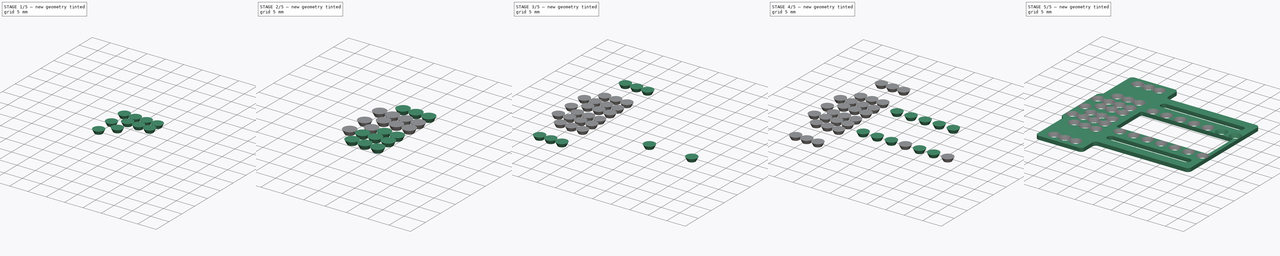
[diagram: build sequence overview — one tinted view per stage of 5, left to right]
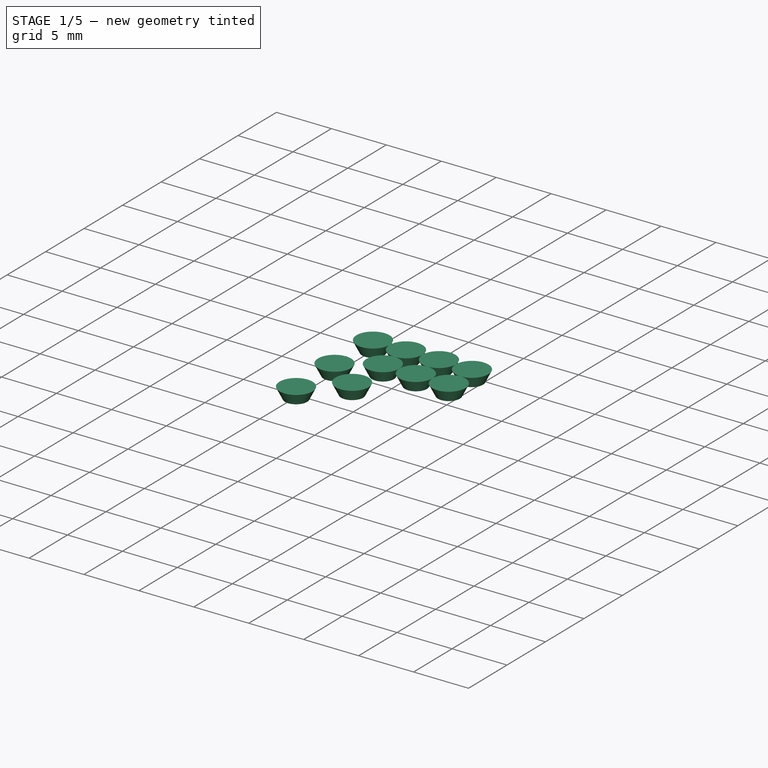
[diagram: stage 1 of 5 — iso view after this stage's code; geometry added in this stage tinted green]
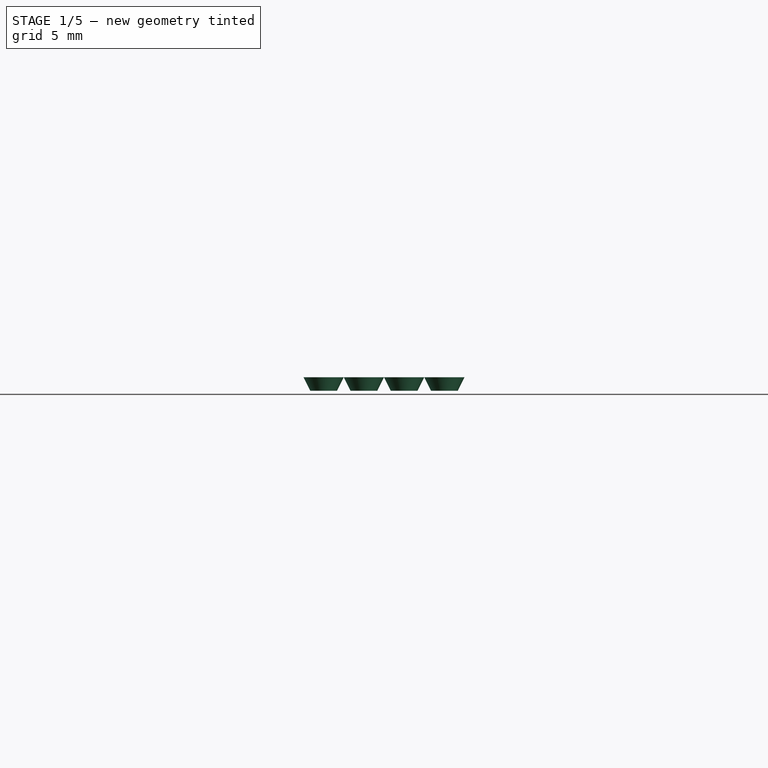
[diagram: stage 1 of 5 — front view after this stage's code; geometry added in this stage tinted green]
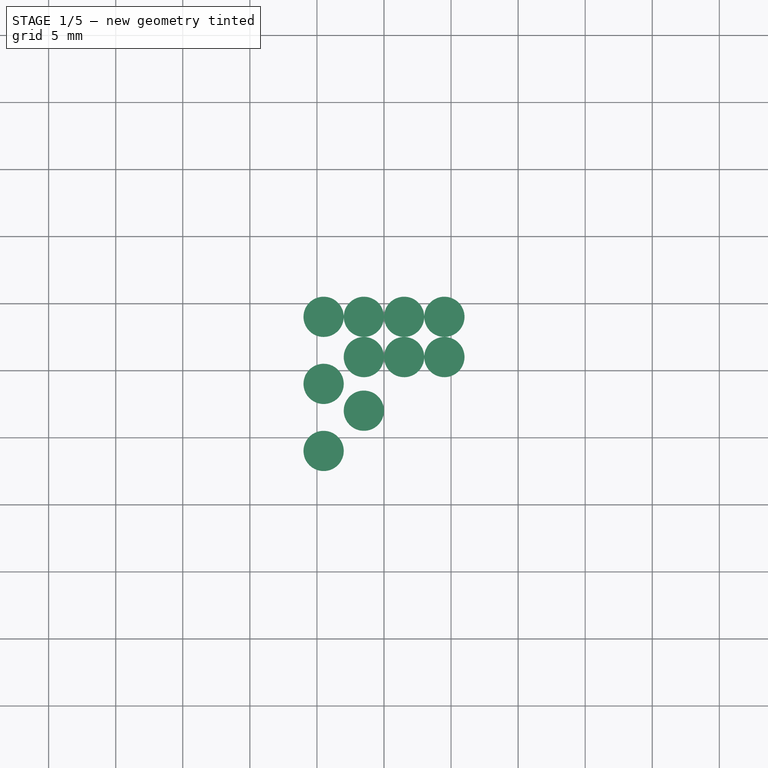
[diagram: stage 1 of 5 — top view after this stage's code; geometry added in this stage tinted green]
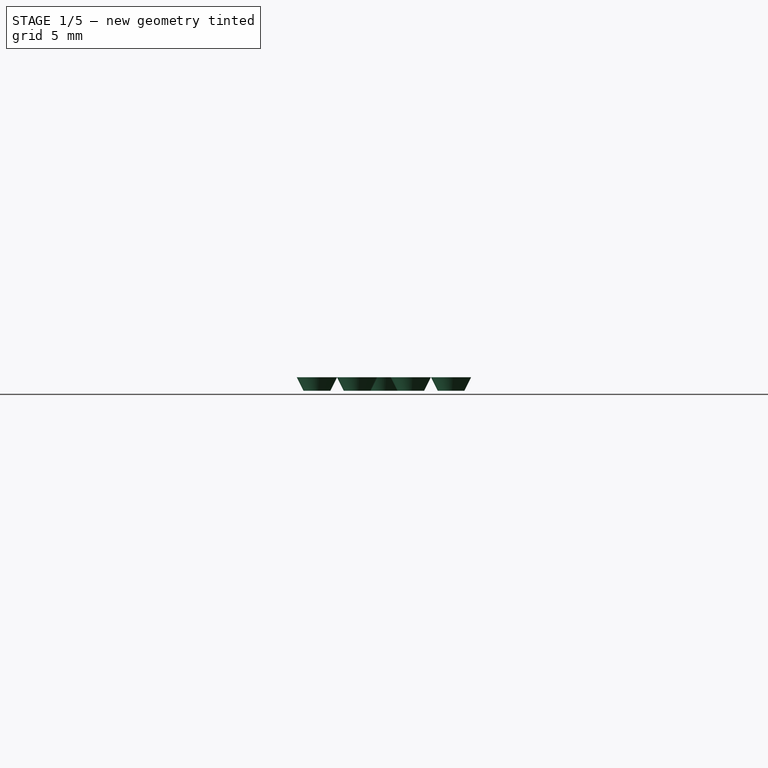
[diagram: stage 1 of 5 — right view after this stage's code; geometry added in this stage tinted green]
FCSTD DOCUMENT  (FreeCAD 0.14R3702 (Git))
Label: scaleauto-b
License: CC-BY 3.0
LicenseURL: http://creativecommons.org/licenses/by/3.0/
objects: Sketcher::SketchObject×86, Part::Loft×41, Part::MultiFuse×7, Part::Extrusion×4, Part::Cut×2
note: 140 computed .brp shape members not serialized (recipe doc carries the construction recipe); baked Part::Feature solids carry a one-line shape summary decoded from their .brp

FEATURE [Sketcher::SketchObject] Sketch034
  sketch-geometry (1):
    g0: Circle CenterX=2 CenterY=2 CenterZ=0 NormalX=0 NormalY=0 NormalZ=1 Radius=1
FEATURE [Sketcher::SketchObject] Sketch035
  Placement = pos=(0,0,1) rot=(0,0,1;0rad)
  sketch-geometry (1):
    g0: Circle CenterX=2 CenterY=2 CenterZ=0 NormalX=0 NormalY=0 NormalZ=1 Radius=1.5
FEATURE [Sketcher::SketchObject] Sketch036
  Placement = pos=(0,0,1) rot=(0,0,1;0rad)
  sketch-geometry (1):
    g0: Circle CenterX=2 CenterY=2 CenterZ=0 NormalX=0 NormalY=0 NormalZ=1 Radius=1.5
FEATURE [Sketcher::SketchObject] Sketch037
  sketch-geometry (1):
    g0: Circle CenterX=2 CenterY=2 CenterZ=0 NormalX=0 NormalY=0 NormalZ=1 Radius=1
FEATURE [Part::Loft] Loft018  label="Loft059"
  Closed = false
  Placement = pos=(4.501,18.999,0) rot=(0,0,1;0rad)
  Ruled = false
  Sections = -> [Sketch037,Sketch036]
  Solid = true
FEATURE [Sketcher::SketchObject] Sketch039
  Placement = pos=(0,0,1) rot=(0,0,1;0rad)
  sketch-geometry (1):
    g0: Circle CenterX=2 CenterY=2 CenterZ=0 NormalX=0 NormalY=0 NormalZ=1 Radius=1.5
FEATURE [Part::Loft] Loft017  label="Loft058"
  Closed = false
  Placement = pos=(1.5,15.001,0) rot=(0,0,1;0rad)
  Ruled = false
  Sections = -> [Sketch034,Sketch039]
  Solid = true
FEATURE [Sketcher::SketchObject] Sketch040
  Placement = pos=(0,0,1) rot=(0,0,1;0rad)
  sketch-geometry (1):
    g0: Circle CenterX=2 CenterY=2 CenterZ=0 NormalX=0 NormalY=0 NormalZ=1 Radius=1.5
FEATURE [Sketcher::SketchObject] Sketch041
  sketch-geometry (1):
    g0: Circle CenterX=2 CenterY=2 CenterZ=0 NormalX=0 NormalY=0 NormalZ=1 Radius=1
FEATURE [Part::Loft] Loft019  label="Loft060"
  Closed = false
  Placement = pos=(1.5,18.999,0) rot=(0,0,1;0rad)
  Ruled = false
  Sections = -> [Sketch041,Sketch040]
  Solid = true
FEATURE [Sketcher::SketchObject] Sketch042
  Placement = pos=(0,0,1) rot=(0,0,1;0rad)
  sketch-geometry (1):
    g0: Circle CenterX=2 CenterY=2 CenterZ=0 NormalX=0 NormalY=0 NormalZ=1 Radius=1.5
FEATURE [Sketcher::SketchObject] Sketch043
  sketch-geometry (1):
    g0: Circle CenterX=2 CenterY=2 CenterZ=0 NormalX=0 NormalY=0 NormalZ=1 Radius=1
FEATURE [Part::Loft] Loft020  label="Loft061"
  Closed = false
  Placement = pos=(11.502,18.999,0) rot=(0,0,1;1.5708rad)
  Ruled = false
  Sections = -> [Sketch043,Sketch042]
  Solid = true
FEATURE [Sketcher::SketchObject] Sketch044
  Placement = pos=(0,0,1) rot=(0,0,1;0rad)
  sketch-geometry (1):
    g0: Circle CenterX=2 CenterY=2 CenterZ=0 NormalX=0 NormalY=0 NormalZ=1 Radius=1.5
FEATURE [Sketcher::SketchObject] Sketch045
  sketch-geometry (1):
    g0: Circle CenterX=2 CenterY=2 CenterZ=0 NormalX=0 NormalY=0 NormalZ=1 Radius=1
FEATURE [Part::Loft] Loft021  label="Loft033"
  Closed = false
  Placement = pos=(11.503,22,0) rot=(0,0,1;1.5708rad)
  Ruled = false
  Sections = -> [Sketch045,Sketch044]
  Solid = true
FEATURE [Sketcher::SketchObject] Sketch046
  sketch-geometry (1):
    g0: Circle CenterX=2 CenterY=2 CenterZ=0 NormalX=0 NormalY=0 NormalZ=1 Radius=1
FEATURE [Sketcher::SketchObject] Sketch047
  Placement = pos=(0,0,1) rot=(0,0,1;0rad)
  sketch-geometry (1):
    g0: Circle CenterX=2 CenterY=2 CenterZ=0 NormalX=0 NormalY=0 NormalZ=1 Radius=1.5
FEATURE [Sketcher::SketchObject] Sketch050
  sketch-geometry (1):
    g0: Circle CenterX=2 CenterY=2 CenterZ=0 NormalX=0 NormalY=0 NormalZ=1 Radius=1
FEATURE [Part::Loft] Loft022  label="Loft062"
  Closed = false
  Placement = pos=(4.501,22,0) rot=(0,0,1;0rad)
  Ruled = false
  Sections = -> [Sketch050,Sketch047]
  Solid = true
FEATURE [Sketcher::SketchObject] Sketch051
  Placement = pos=(0,0,1) rot=(0,0,1;0rad)
  sketch-geometry (1):
    g0: Circle CenterX=2 CenterY=2 CenterZ=0 NormalX=0 NormalY=0 NormalZ=1 Radius=1.5
FEATURE [Part::Loft] Loft023  label="Loft063"
  Closed = false
  Placement = pos=(1.5,22,0) rot=(0,0,1;0rad)
  Ruled = false
  Sections = -> [Sketch046,Sketch051]
  Solid = true
FEATURE [Sketcher::SketchObject] Sketch052
  Placement = pos=(0,0,1) rot=(0,0,1;0rad)
  sketch-geometry (1):
    g0: Circle CenterX=2 CenterY=2 CenterZ=0 NormalX=0 NormalY=0 NormalZ=1 Radius=1.5
FEATURE [Sketcher::SketchObject] Sketch053
  sketch-geometry (1):
    g0: Circle CenterX=2 CenterY=2 CenterZ=0 NormalX=0 NormalY=0 NormalZ=1 Radius=1
FEATURE [Part::Loft] Loft024  label="Loft064"
  Closed = false
  Placement = pos=(-1.5,12,0) rot=(0,0,1;0rad)
  Ruled = false
  Sections = -> [Sketch053,Sketch052]
  Solid = true
FEATURE [Sketcher::SketchObject] Sketch054
  Placement = pos=(0,0,1) rot=(0,0,1;0rad)
  sketch-geometry (1):
    g0: Circle CenterX=2 CenterY=2 CenterZ=0 NormalX=0 NormalY=0 NormalZ=1 Radius=1.5
FEATURE [Sketcher::SketchObject] Sketch055
  sketch-geometry (1):
    g0: Circle CenterX=2 CenterY=2 CenterZ=0 NormalX=0 NormalY=0 NormalZ=1 Radius=1
FEATURE [Part::Loft] Loft025  label="Loft065"
  Closed = false
  Placement = pos=(-1.5,22,0) rot=(0,0,1;0rad)
  Ruled = false
  Sections = -> [Sketch055,Sketch054]
  Solid = true
FEATURE [Sketcher::SketchObject] Sketch056
  Placement = pos=(0,0,1) rot=(0,0,1;0rad)
  sketch-geometry (1):
    g0: Circle CenterX=2 CenterY=2 CenterZ=0 NormalX=0 NormalY=0 NormalZ=1 Radius=1.5
FEATURE [Sketcher::SketchObject] Sketch057
  sketch-geometry (1):
    g0: Circle CenterX=2 CenterY=2 CenterZ=0 NormalX=0 NormalY=0 NormalZ=1 Radius=1
FEATURE [Part::Loft] Loft026  label="Loft066"
  Closed = false
  Placement = pos=(-1.5,17,0) rot=(0,0,1;0rad)
  Ruled = false
  Sections = -> [Sketch057,Sketch056]
  Solid = true
FEATURE [Part::MultiFuse] Fusion004
  Shapes = -> [Loft026,Loft025,Loft024]
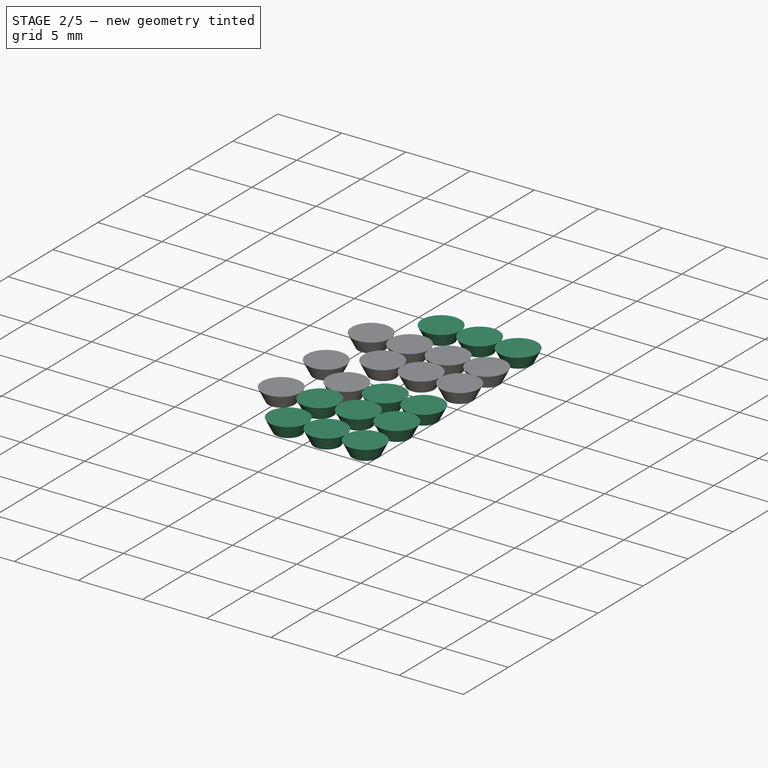
[diagram: stage 2 of 5 — iso view after this stage's code; geometry added in this stage tinted green]
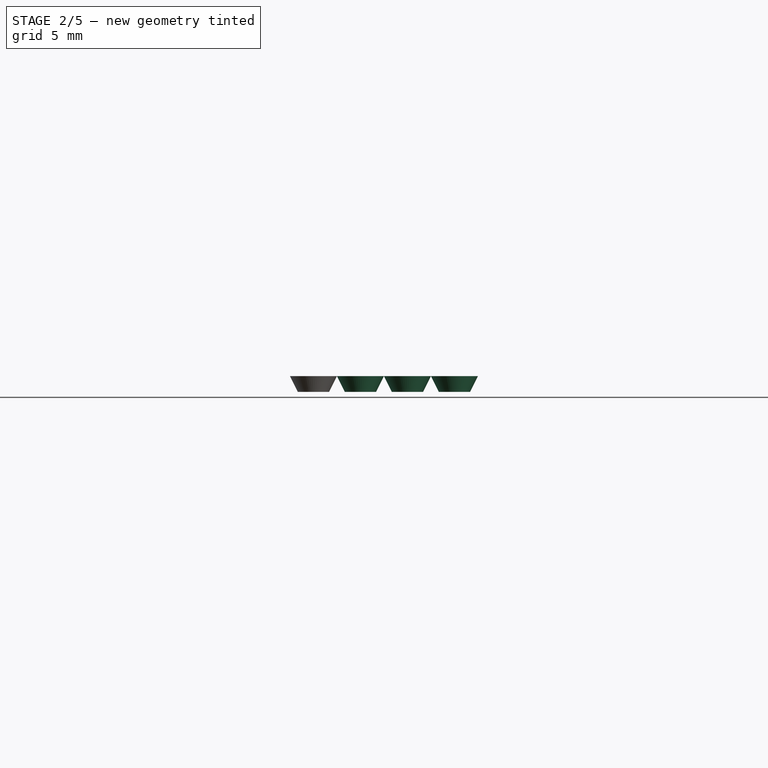
[diagram: stage 2 of 5 — front view after this stage's code; geometry added in this stage tinted green]
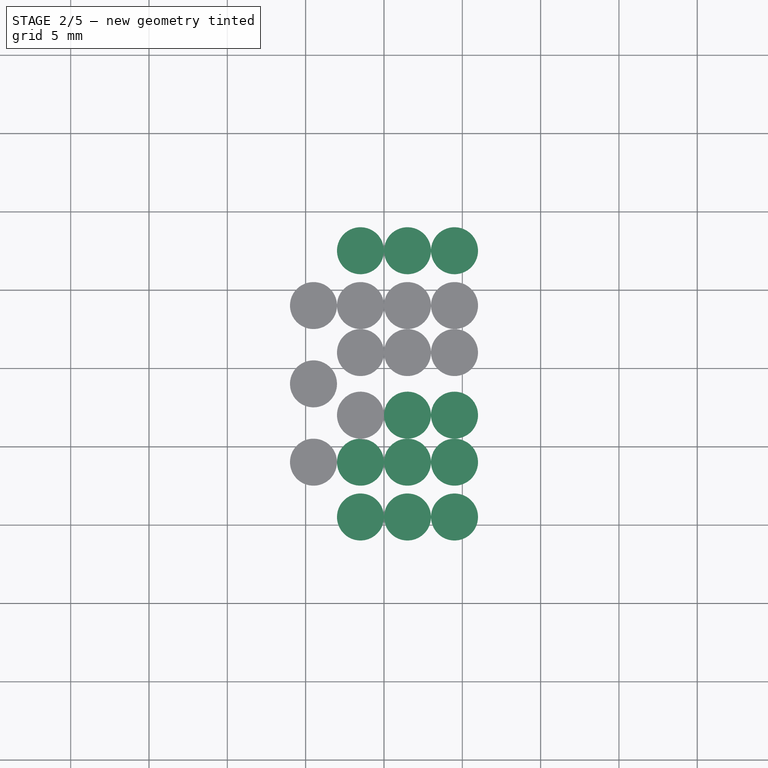
[diagram: stage 2 of 5 — top view after this stage's code; geometry added in this stage tinted green]
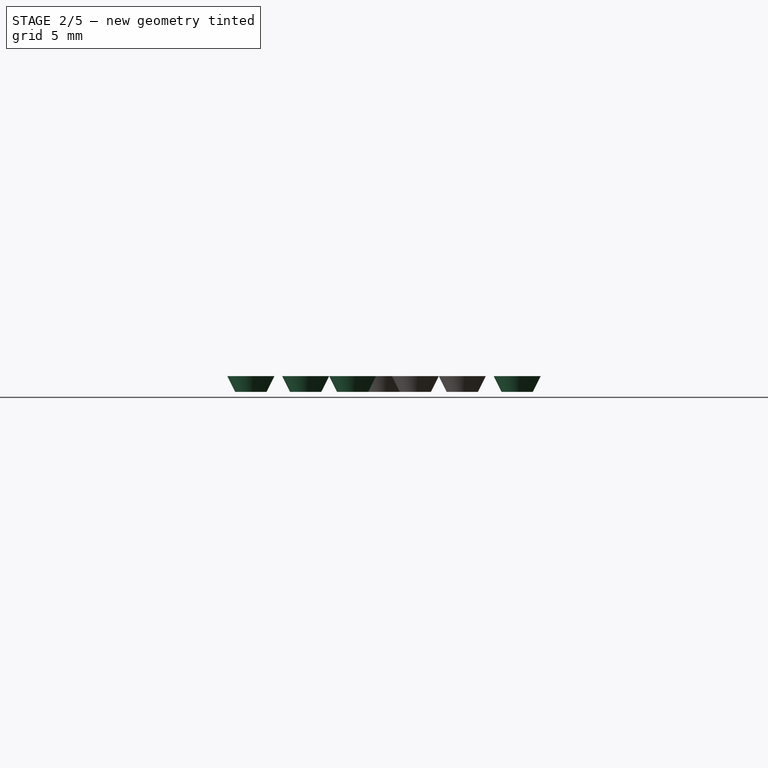
[diagram: stage 2 of 5 — right view after this stage's code; geometry added in this stage tinted green]
FEATURE [Sketcher::SketchObject] Sketch014
  sketch-geometry (1):
    g0: Circle CenterX=2 CenterY=2 CenterZ=0 NormalX=0 NormalY=0 NormalZ=1 Radius=1
FEATURE [Sketcher::SketchObject] Sketch015
  Placement = pos=(0,0,1) rot=(0,0,1;0rad)
  sketch-geometry (1):
    g0: Circle CenterX=2 CenterY=2 CenterZ=0 NormalX=0 NormalY=0 NormalZ=1 Radius=1.5
FEATURE [Sketcher::SketchObject] Sketch016
  sketch-geometry (1):
    g0: Circle CenterX=2 CenterY=2 CenterZ=0 NormalX=0 NormalY=0 NormalZ=1 Radius=1
FEATURE [Part::Loft] Loft006  label="Loft047"
  Closed = false
  Placement = pos=(11.502,25.5,0) rot=(0,0,1;1.5708rad)
  Ruled = false
  Sections = -> [Sketch016,Sketch015]
  Solid = true
FEATURE [Sketcher::SketchObject] Sketch017
  Placement = pos=(0,0,1) rot=(0,0,1;0rad)
  sketch-geometry (1):
    g0: Circle CenterX=2 CenterY=2 CenterZ=0 NormalX=0 NormalY=0 NormalZ=1 Radius=1.5
FEATURE [Part::Loft] Loft007  label="Loft048"
  Closed = false
  Placement = pos=(1.5,25.5,0) rot=(0,0,1;0rad)
  Ruled = false
  Sections = -> [Sketch014,Sketch017]
  Solid = true
FEATURE [Sketcher::SketchObject] Sketch018
  Placement = pos=(0,0,1) rot=(0,0,1;0rad)
  sketch-geometry (1):
    g0: Circle CenterX=2 CenterY=2 CenterZ=0 NormalX=0 NormalY=0 NormalZ=1 Radius=1.5
FEATURE [Sketcher::SketchObject] Sketch019
  sketch-geometry (1):
    g0: Circle CenterX=2 CenterY=2 CenterZ=0 NormalX=0 NormalY=0 NormalZ=1 Radius=1
FEATURE [Part::Loft] Loft008  label="Loft049"
  Closed = false
  Placement = pos=(4.501,25.5,0) rot=(0,0,1;0rad)
  Ruled = false
  Sections = -> [Sketch019,Sketch018]
  Solid = true
FEATURE [Sketcher::SketchObject] Sketch020
  Placement = pos=(0,0,1) rot=(0,0,1;0rad)
  sketch-geometry (1):
    g0: Circle CenterX=2 CenterY=2 CenterZ=0 NormalX=0 NormalY=0 NormalZ=1 Radius=1.5
FEATURE [Sketcher::SketchObject] Sketch021
  sketch-geometry (1):
    g0: Circle CenterX=2 CenterY=2 CenterZ=0 NormalX=0 NormalY=0 NormalZ=1 Radius=1
FEATURE [Part::Loft] Loft009  label="Loft050"
  Closed = false
  Placement = pos=(11.502,8.5,0) rot=(0,0,1;1.5708rad)
  Ruled = false
  Sections = -> [Sketch021,Sketch020]
  Solid = true
FEATURE [Sketcher::SketchObject] Sketch022
  Placement = pos=(0,0,1) rot=(0,0,1;0rad)
  sketch-geometry (1):
    g0: Circle CenterX=2 CenterY=2 CenterZ=0 NormalX=0 NormalY=0 NormalZ=1 Radius=1.5
FEATURE [Sketcher::SketchObject] Sketch023
  sketch-geometry (1):
    g0: Circle CenterX=2 CenterY=2 CenterZ=0 NormalX=0 NormalY=0 NormalZ=1 Radius=1
FEATURE [Part::Loft] Loft010  label="Loft051"
  Closed = false
  Placement = pos=(1.5,8.5,0) rot=(0,0,1;0rad)
  Ruled = false
  Sections = -> [Sketch023,Sketch022]
  Solid = true
FEATURE [Sketcher::SketchObject] Sketch024
  Placement = pos=(0,0,1) rot=(0,0,1;0rad)
  sketch-geometry (1):
    g0: Circle CenterX=2 CenterY=2 CenterZ=0 NormalX=0 NormalY=0 NormalZ=1 Radius=1.5
FEATURE [Sketcher::SketchObject] Sketch025
  sketch-geometry (1):
    g0: Circle CenterX=2 CenterY=2 CenterZ=0 NormalX=0 NormalY=0 NormalZ=1 Radius=1
FEATURE [Part::Loft] Loft011  label="Loft052"
  Closed = false
  Placement = pos=(4.501,8.5,0) rot=(0,0,1;0rad)
  Ruled = false
  Sections = -> [Sketch025,Sketch024]
  Solid = true
FEATURE [Sketcher::SketchObject] Sketch026
  Placement = pos=(0,0,1) rot=(0,0,1;0rad)
  sketch-geometry (1):
    g0: Circle CenterX=2 CenterY=2 CenterZ=0 NormalX=0 NormalY=0 NormalZ=1 Radius=1.5
FEATURE [Sketcher::SketchObject] Sketch027
  sketch-geometry (1):
    g0: Circle CenterX=2 CenterY=2 CenterZ=0 NormalX=0 NormalY=0 NormalZ=1 Radius=1
FEATURE [Part::Loft] Loft012  label="Loft053"
  Closed = false
  Placement = pos=(4.501,12,0) rot=(0,0,1;0rad)
  Ruled = false
  Sections = -> [Sketch027,Sketch026]
  Solid = true
FEATURE [Sketcher::SketchObject] Sketch028
  Placement = pos=(0,0,1) rot=(0,0,1;0rad)
  sketch-geometry (1):
    g0: Circle CenterX=2 CenterY=2 CenterZ=0 NormalX=0 NormalY=0 NormalZ=1 Radius=1.5
FEATURE [Sketcher::SketchObject] Sketch029
  sketch-geometry (1):
    g0: Circle CenterX=2 CenterY=2 CenterZ=0 NormalX=0 NormalY=0 NormalZ=1 Radius=1
FEATURE [Part::Loft] Loft013  label="Loft054"
  Closed = false
  Placement = pos=(1.5,12,0) rot=(0,0,1;0rad)
  Ruled = false
  Sections = -> [Sketch029,Sketch028]
  Solid = true
FEATURE [Sketcher::SketchObject] Sketch030
  Placement = pos=(0,0,1) rot=(0,0,1;0rad)
  sketch-geometry (1):
    g0: Circle CenterX=2 CenterY=2 CenterZ=0 NormalX=0 NormalY=0 NormalZ=1 Radius=1.5
FEATURE [Sketcher::SketchObject] Sketch031
  sketch-geometry (1):
    g0: Circle CenterX=2 CenterY=2 CenterZ=0 NormalX=0 NormalY=0 NormalZ=1 Radius=1
FEATURE [Part::Loft] Loft014  label="Loft055"
  Closed = false
  Placement = pos=(11.502,12,0) rot=(0,0,1;1.5708rad)
  Ruled = false
  Sections = -> [Sketch031,Sketch030]
  Solid = true
FEATURE [Sketcher::SketchObject] Sketch032
  Placement = pos=(0,0,1) rot=(0,0,1;0rad)
  sketch-geometry (1):
    g0: Circle CenterX=2 CenterY=2 CenterZ=0 NormalX=0 NormalY=0 NormalZ=1 Radius=1.5
FEATURE [Sketcher::SketchObject] Sketch033
  sketch-geometry (1):
    g0: Circle CenterX=2 CenterY=2 CenterZ=0 NormalX=0 NormalY=0 NormalZ=1 Radius=1
FEATURE [Part::Loft] Loft015  label="Loft056"
  Closed = false
  Placement = pos=(11.502,15.001,0) rot=(0,0,1;1.5708rad)
  Ruled = false
  Sections = -> [Sketch033,Sketch032]
  Solid = true
FEATURE [Sketcher::SketchObject] Sketch038
  sketch-geometry (1):
    g0: Circle CenterX=2 CenterY=2 CenterZ=0 NormalX=0 NormalY=0 NormalZ=1 Radius=1
FEATURE [Part::Loft] Loft016  label="Loft057"
  Closed = false
  Placement = pos=(4.501,15.001,0) rot=(0,0,1;0rad)
  Ruled = false
  Sections = -> [Sketch038,Sketch035]
  Solid = true
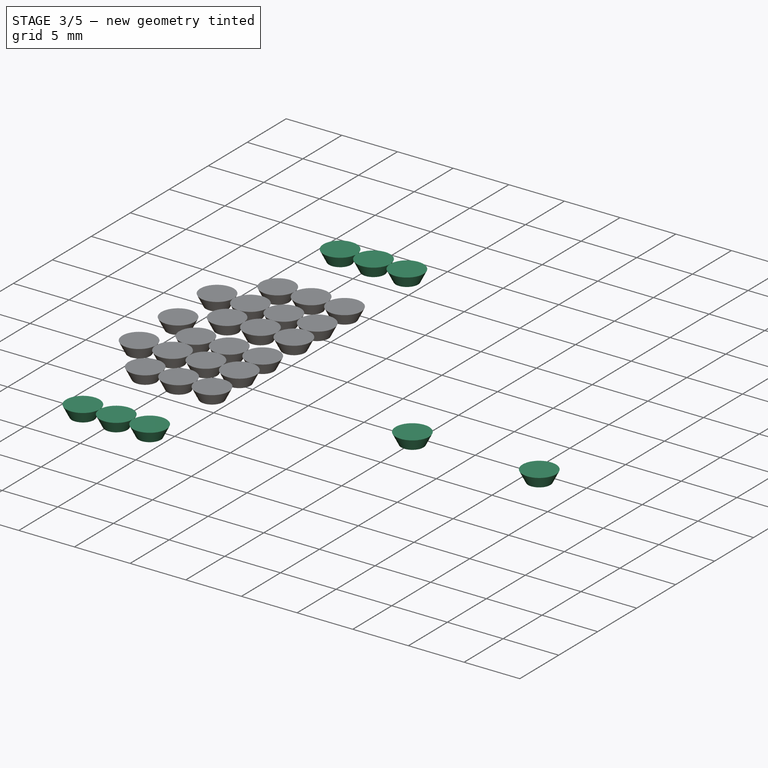
[diagram: stage 3 of 5 — iso view after this stage's code; geometry added in this stage tinted green]
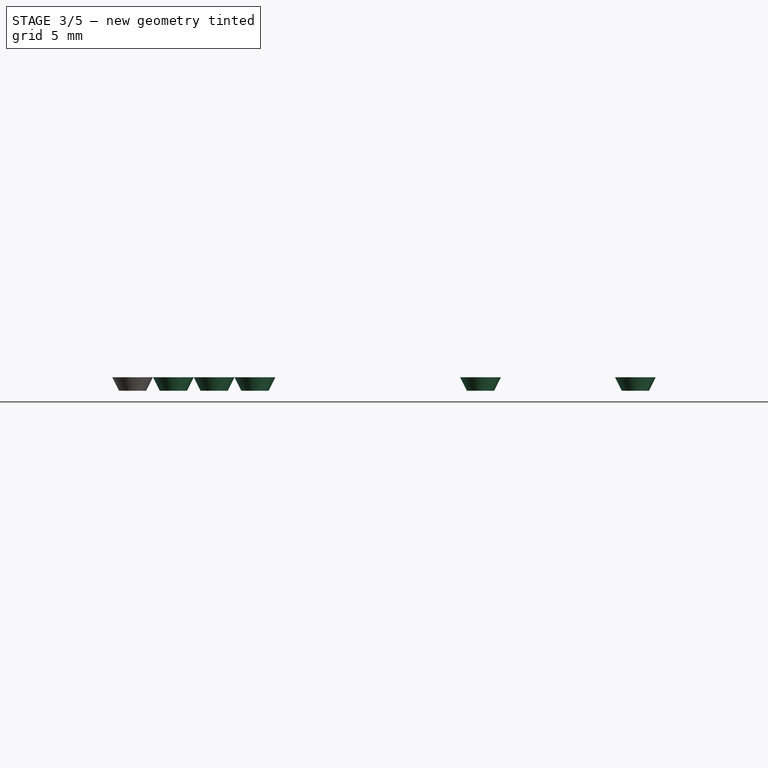
[diagram: stage 3 of 5 — front view after this stage's code; geometry added in this stage tinted green]
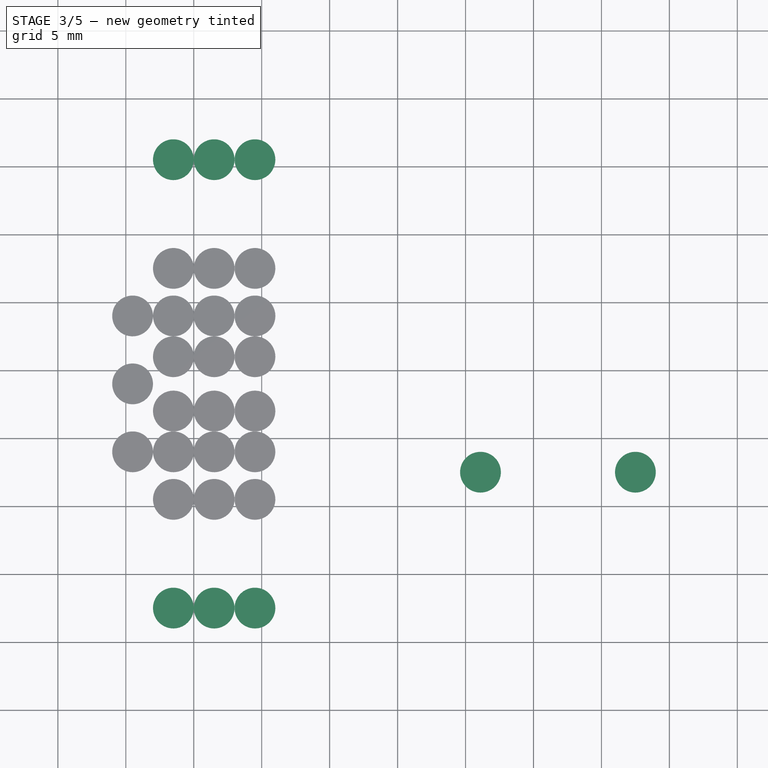
[diagram: stage 3 of 5 — top view after this stage's code; geometry added in this stage tinted green]
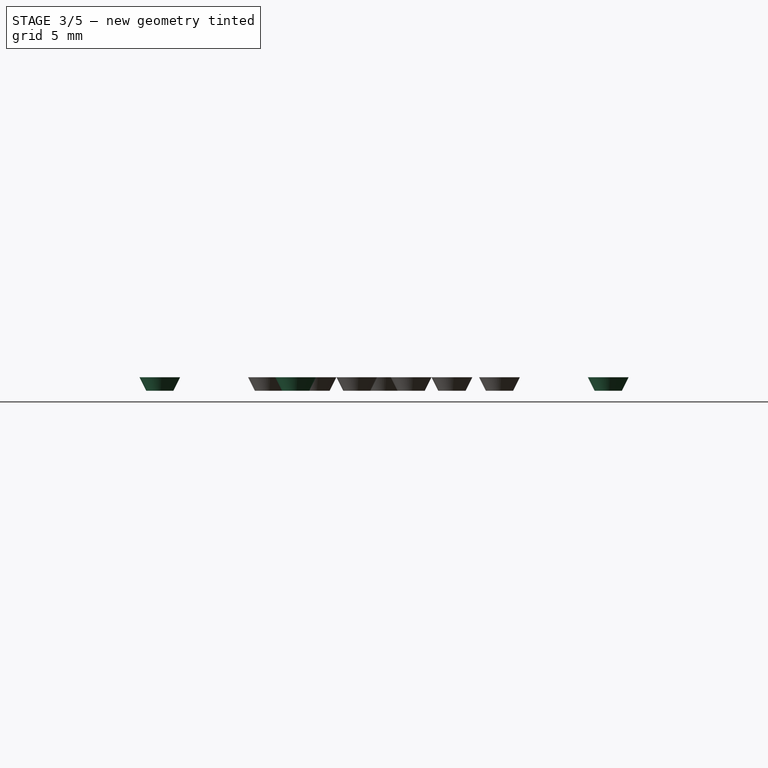
[diagram: stage 3 of 5 — right view after this stage's code; geometry added in this stage tinted green]
FEATURE [Sketcher::SketchObject] Sketch004
  Placement = pos=(0,0,1) rot=(0,0,1;0rad)
  sketch-geometry (1):
    g0: Circle CenterX=2 CenterY=2 CenterZ=0 NormalX=0 NormalY=0 NormalZ=1 Radius=1.5
FEATURE [Sketcher::SketchObject] Sketch005
  sketch-geometry (1):
    g0: Circle CenterX=2 CenterY=2 CenterZ=0 NormalX=0 NormalY=0 NormalZ=1 Radius=1
FEATURE [Part::Loft] Loft001  label="Loft042"
  Closed = false
  Placement = pos=(4.501,0.5,0) rot=(0,0,1;0rad)
  Ruled = false
  Sections = -> [Sketch005,Sketch004]
  Solid = true
FEATURE [Sketcher::SketchObject] Sketch006
  Placement = pos=(0,0,1) rot=(0,0,1;0rad)
  sketch-geometry (1):
    g0: Circle CenterX=2 CenterY=2 CenterZ=0 NormalX=0 NormalY=0 NormalZ=1 Radius=1.5
FEATURE [Sketcher::SketchObject] Sketch007
  sketch-geometry (1):
    g0: Circle CenterX=2 CenterY=2 CenterZ=0 NormalX=0 NormalY=0 NormalZ=1 Radius=1
FEATURE [Part::Loft] Loft002  label="Loft043"
  Closed = false
  Placement = pos=(11.502,0.5,0) rot=(0,0,1;1.5708rad)
  Ruled = false
  Sections = -> [Sketch007,Sketch006]
  Solid = true
FEATURE [Sketcher::SketchObject] Sketch008
  Placement = pos=(0,0,1) rot=(0,0,1;0rad)
  sketch-geometry (1):
    g0: Circle CenterX=2 CenterY=2 CenterZ=0 NormalX=0 NormalY=0 NormalZ=1 Radius=1.5
FEATURE [Sketcher::SketchObject] Sketch009
  Placement = pos=(0,0,1) rot=(0,0,1;0rad)
  sketch-geometry (1):
    g0: Circle CenterX=2 CenterY=2 CenterZ=0 NormalX=0 NormalY=0 NormalZ=1 Radius=1.5
FEATURE [Sketcher::SketchObject] Sketch010
  sketch-geometry (1):
    g0: Circle CenterX=2 CenterY=2 CenterZ=0 NormalX=0 NormalY=0 NormalZ=1 Radius=1
FEATURE [Part::Loft] Loft004  label="Loft045"
  Closed = false
  Placement = pos=(4.501,33.5,0) rot=(0,0,1;0rad)
  Ruled = false
  Sections = -> [Sketch010,Sketch009]
  Solid = true
FEATURE [Sketcher::SketchObject] Sketch011
  sketch-geometry (1):
    g0: Circle CenterX=2 CenterY=2 CenterZ=0 NormalX=0 NormalY=0 NormalZ=1 Radius=1
FEATURE [Part::Loft] Loft003  label="Loft044"
  Closed = false
  Placement = pos=(1.5,0.5,0) rot=(0,0,1;0rad)
  Ruled = false
  Sections = -> [Sketch011,Sketch008]
  Solid = true
FEATURE [Sketcher::SketchObject] Sketch012
  Placement = pos=(0,0,1) rot=(0,0,1;0rad)
  sketch-geometry (1):
    g0: Circle CenterX=2 CenterY=2 CenterZ=0 NormalX=0 NormalY=0 NormalZ=1 Radius=1.5
FEATURE [Sketcher::SketchObject] Sketch013
  sketch-geometry (1):
    g0: Circle CenterX=2 CenterY=2 CenterZ=0 NormalX=0 NormalY=0 NormalZ=1 Radius=1
FEATURE [Part::Loft] Loft005  label="Loft046"
  Closed = false
  Placement = pos=(11.502,33.5,0) rot=(0,0,1;1.5708rad)
  Ruled = false
  Sections = -> [Sketch013,Sketch012]
  Solid = true
FEATURE [Sketcher::SketchObject] Sketch002
  Placement = pos=(0,0,1) rot=(0,0,1;0rad)
  sketch-geometry (1):
    g0: Circle CenterX=2 CenterY=2 CenterZ=0 NormalX=0 NormalY=0 NormalZ=1 Radius=1.5
FEATURE [Sketcher::SketchObject] Sketch003
  sketch-geometry (1):
    g0: Circle CenterX=2 CenterY=2 CenterZ=0 NormalX=0 NormalY=0 NormalZ=1 Radius=1
FEATURE [Part::Loft] Loft  label="Loft001"
  Closed = false
  Placement = pos=(1.5,33.5,0) rot=(0,0,1;0rad)
  Ruled = false
  Sections = -> [Sketch003,Sketch002]
  Solid = true
FEATURE [Sketcher::SketchObject] Sketch086
  sketch-geometry (1):
    g0: Circle CenterX=2 CenterY=2 CenterZ=0 NormalX=0 NormalY=0 NormalZ=1 Radius=1
FEATURE [Part::Loft] Loft040  label="Loft079"
  Closed = false
  Placement = pos=(28.1,10.5,0) rot=(0,0,1;1.5708rad)
  Ruled = false
  Sections = -> [Sketch086,Sketch082]
  Solid = true
FEATURE [Sketcher::SketchObject] Sketch087
  Placement = pos=(0,0,1) rot=(0,0,1;0rad)
  sketch-geometry (1):
    g0: Circle CenterX=2 CenterY=2 CenterZ=0 NormalX=0 NormalY=0 NormalZ=1 Radius=1.5
FEATURE [Sketcher::SketchObject] Sketch088
  sketch-geometry (1):
    g0: Circle CenterX=2 CenterY=2 CenterZ=0 NormalX=0 NormalY=0 NormalZ=1 Radius=1
FEATURE [Part::Loft] Loft041  label="Loft080"
  Closed = false
  Placement = pos=(39.5,10.5,0) rot=(0,0,1;1.5708rad)
  Ruled = false
  Sections = -> [Sketch088,Sketch087]
  Solid = true
FEATURE [Part::MultiFuse] Fusion
  Placement = pos=(0.001,0,0) rot=(0,0,1;0rad)
  Shapes = -> [Loft004,Loft005,Loft,Loft007,Loft008,Loft006,Loft023,Loft022,Loft021,Loft019,Loft018,Loft020,Loft017,Loft016,Loft015,Loft013,Loft012,Loft014,Loft010,Loft011,Loft009,Loft003,Loft001,Loft002]
FEATURE [Part::MultiFuse] Fusion005
  Shapes = -> [Fusion,Fusion004]
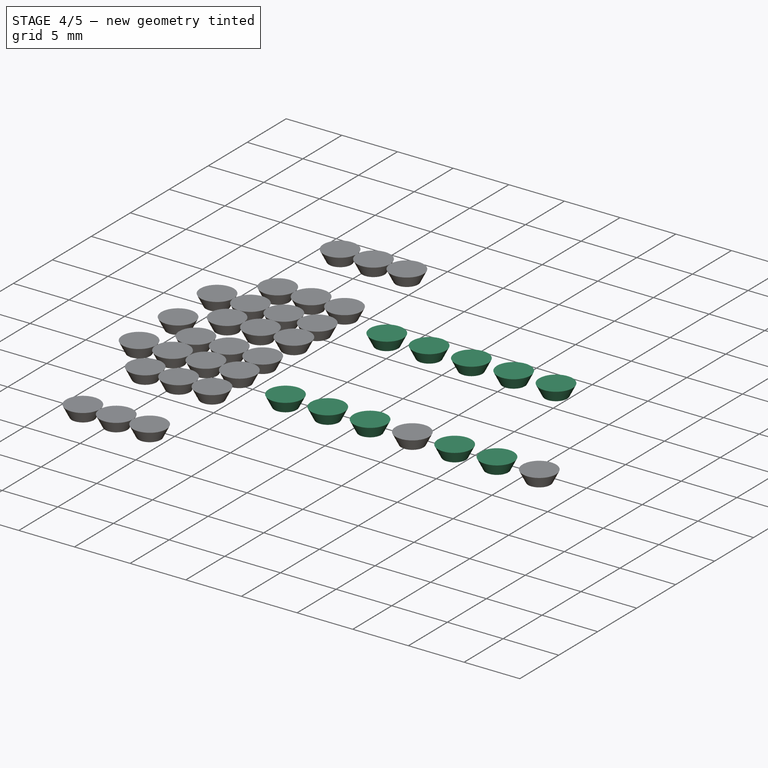
[diagram: stage 4 of 5 — iso view after this stage's code; geometry added in this stage tinted green]
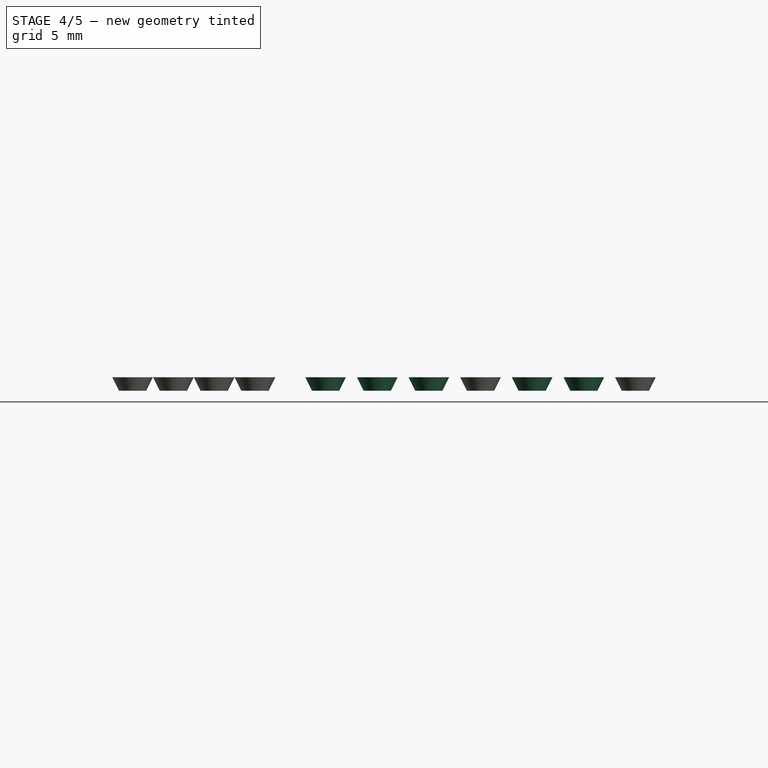
[diagram: stage 4 of 5 — front view after this stage's code; geometry added in this stage tinted green]
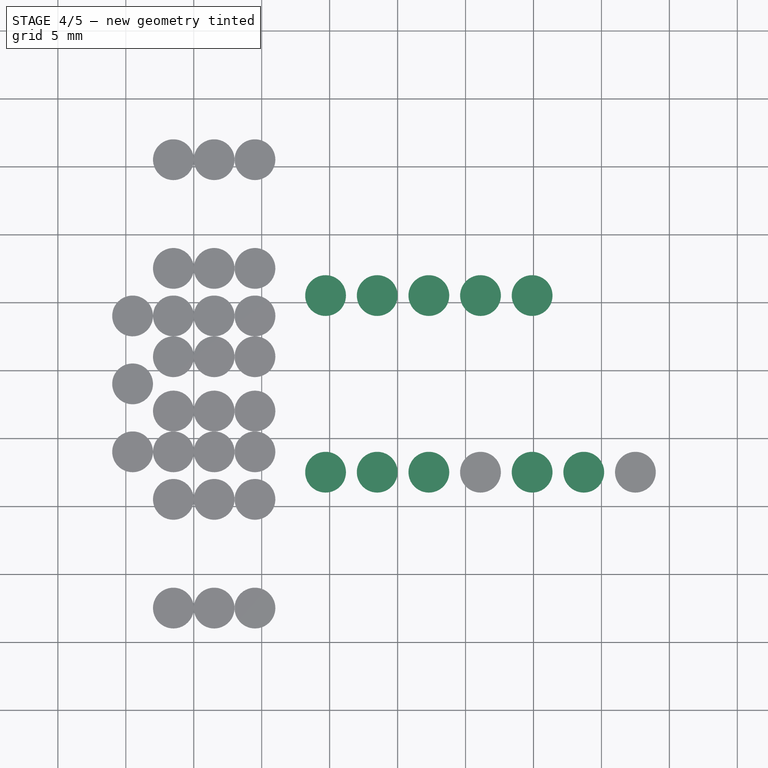
[diagram: stage 4 of 5 — top view after this stage's code; geometry added in this stage tinted green]
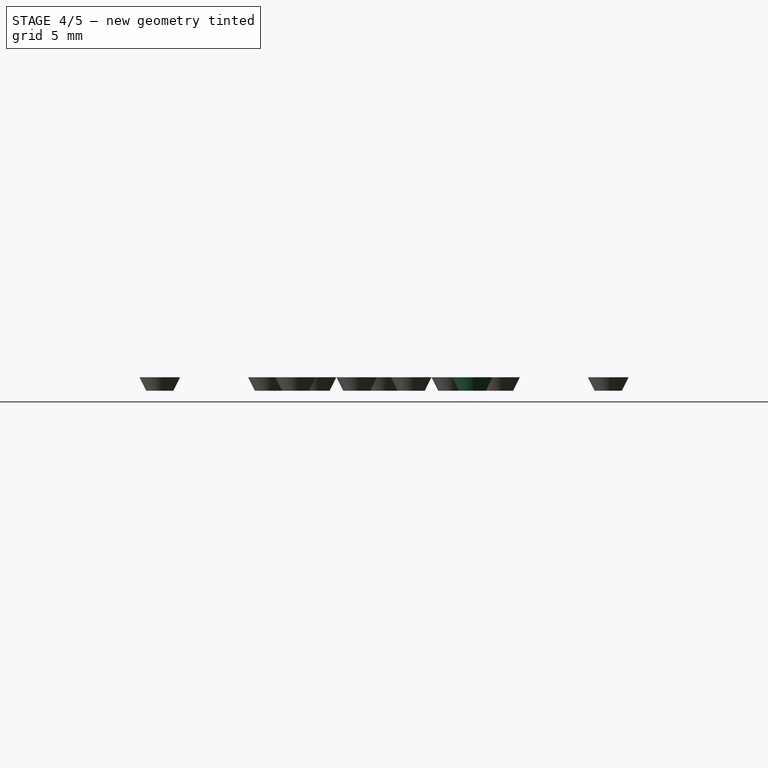
[diagram: stage 4 of 5 — right view after this stage's code; geometry added in this stage tinted green]
FEATURE [Sketcher::SketchObject] Sketch065
  Placement = pos=(0,0,1) rot=(0,0,1;0rad)
  sketch-geometry (1):
    g0: Circle CenterX=2 CenterY=2 CenterZ=0 NormalX=0 NormalY=0 NormalZ=1 Radius=1.5
FEATURE [Sketcher::SketchObject] Sketch066
  sketch-geometry (1):
    g0: Circle CenterX=2 CenterY=2 CenterZ=0 NormalX=0 NormalY=0 NormalZ=1 Radius=1
FEATURE [Part::Loft] Loft029  label="Loft069"
  Closed = false
  Placement = pos=(31.9,23.5,0) rot=(0,0,1;1.5708rad)
  Ruled = false
  Sections = -> [Sketch066,Sketch065]
  Solid = true
FEATURE [Sketcher::SketchObject] Sketch067
  Placement = pos=(0,0,1) rot=(0,0,1;0rad)
  sketch-geometry (1):
    g0: Circle CenterX=2 CenterY=2 CenterZ=0 NormalX=0 NormalY=0 NormalZ=1 Radius=1.5
FEATURE [Sketcher::SketchObject] Sketch068
  sketch-geometry (1):
    g0: Circle CenterX=2 CenterY=2 CenterZ=0 NormalX=0 NormalY=0 NormalZ=1 Radius=1
FEATURE [Part::Loft] Loft030  label="Loft070"
  Closed = false
  Placement = pos=(28.1,23.5,0) rot=(0,0,1;1.5708rad)
  Ruled = false
  Sections = -> [Sketch068,Sketch067]
  Solid = true
FEATURE [Sketcher::SketchObject] Sketch069
  Placement = pos=(0,0,1) rot=(0,0,1;0rad)
  sketch-geometry (1):
    g0: Circle CenterX=2 CenterY=2 CenterZ=0 NormalX=0 NormalY=0 NormalZ=1 Radius=1.5
FEATURE [Sketcher::SketchObject] Sketch070
  sketch-geometry (1):
    g0: Circle CenterX=2 CenterY=2 CenterZ=0 NormalX=0 NormalY=0 NormalZ=1 Radius=1
FEATURE [Sketcher::SketchObject] Sketch071
  Placement = pos=(0,0,1) rot=(0,0,1;0rad)
  sketch-geometry (1):
    g0: Circle CenterX=2 CenterY=2 CenterZ=0 NormalX=0 NormalY=0 NormalZ=1 Radius=1.5
FEATURE [Sketcher::SketchObject] Sketch072
  sketch-geometry (1):
    g0: Circle CenterX=2 CenterY=2 CenterZ=0 NormalX=0 NormalY=0 NormalZ=1 Radius=1
FEATURE [Part::Loft] Loft032  label="Loft072"
  Closed = false
  Placement = pos=(16.7,23.5,0) rot=(0,0,1;1.5708rad)
  Ruled = false
  Sections = -> [Sketch072,Sketch071]
  Solid = true
FEATURE [Sketcher::SketchObject] Sketch073
  sketch-geometry (1):
    g0: Circle CenterX=2 CenterY=2 CenterZ=0 NormalX=0 NormalY=0 NormalZ=1 Radius=1
FEATURE [Part::Loft] Loft034  label="Loft073"
  Closed = false
  Placement = pos=(20.5,23.5,0) rot=(0,0,1;1.5708rad)
  Ruled = false
  Sections = -> [Sketch073,Sketch069]
  Solid = true
FEATURE [Sketcher::SketchObject] Sketch075
  Placement = pos=(0,0,1) rot=(0,0,1;0rad)
  sketch-geometry (1):
    g0: Circle CenterX=2 CenterY=2 CenterZ=0 NormalX=0 NormalY=0 NormalZ=1 Radius=1.5
FEATURE [Part::Loft] Loft031  label="Loft071"
  Closed = false
  Placement = pos=(24.3,23.5,0) rot=(0,0,1;1.5708rad)
  Ruled = false
  Sections = -> [Sketch070,Sketch075]
  Solid = true
FEATURE [Sketcher::SketchObject] Sketch076
  Placement = pos=(0,0,1) rot=(0,0,1;0rad)
  sketch-geometry (1):
    g0: Circle CenterX=2 CenterY=2 CenterZ=0 NormalX=0 NormalY=0 NormalZ=1 Radius=1.5
FEATURE [Sketcher::SketchObject] Sketch077
  sketch-geometry (1):
    g0: Circle CenterX=2 CenterY=2 CenterZ=0 NormalX=0 NormalY=0 NormalZ=1 Radius=1
FEATURE [Part::Loft] Loft035  label="Loft074"
  Closed = false
  Placement = pos=(20.5,10.5,0) rot=(0,0,1;1.5708rad)
  Ruled = false
  Sections = -> [Sketch077,Sketch076]
  Solid = true
FEATURE [Sketcher::SketchObject] Sketch078
  Placement = pos=(0,0,1) rot=(0,0,1;0rad)
  sketch-geometry (1):
    g0: Circle CenterX=2 CenterY=2 CenterZ=0 NormalX=0 NormalY=0 NormalZ=1 Radius=1.5
FEATURE [Sketcher::SketchObject] Sketch079
  Placement = pos=(0,0,1) rot=(0,0,1;0rad)
  sketch-geometry (1):
    g0: Circle CenterX=2 CenterY=2 CenterZ=0 NormalX=0 NormalY=0 NormalZ=1 Radius=1.5
FEATURE [Sketcher::SketchObject] Sketch080
  sketch-geometry (1):
    g0: Circle CenterX=2 CenterY=2 CenterZ=0 NormalX=0 NormalY=0 NormalZ=1 Radius=1
FEATURE [Sketcher::SketchObject] Sketch081
  sketch-geometry (1):
    g0: Circle CenterX=2 CenterY=2 CenterZ=0 NormalX=0 NormalY=0 NormalZ=1 Radius=1
FEATURE [Sketcher::SketchObject] Sketch082
  Placement = pos=(0,0,1) rot=(0,0,1;0rad)
  sketch-geometry (1):
    g0: Circle CenterX=2 CenterY=2 CenterZ=0 NormalX=0 NormalY=0 NormalZ=1 Radius=1.5
FEATURE [Sketcher::SketchObject] Sketch083
  sketch-geometry (1):
    g0: Circle CenterX=2 CenterY=2 CenterZ=0 NormalX=0 NormalY=0 NormalZ=1 Radius=1
FEATURE [Part::Loft] Loft036  label="Loft075"
  Closed = false
  Placement = pos=(16.7,10.5,0) rot=(0,0,1;1.5708rad)
  Ruled = false
  Sections = -> [Sketch083,Sketch078]
  Solid = true
FEATURE [Sketcher::SketchObject] Sketch084
  Placement = pos=(0,0,1) rot=(0,0,1;0rad)
  sketch-geometry (1):
    g0: Circle CenterX=2 CenterY=2 CenterZ=0 NormalX=0 NormalY=0 NormalZ=1 Radius=1.5
FEATURE [Sketcher::SketchObject] Sketch085
  sketch-geometry (1):
    g0: Circle CenterX=2 CenterY=2 CenterZ=0 NormalX=0 NormalY=0 NormalZ=1 Radius=1
FEATURE [Part::Loft] Loft038  label="Loft077"
  Closed = false
  Placement = pos=(35.7,10.5,0) rot=(0,0,1;1.5708rad)
  Ruled = false
  Sections = -> [Sketch085,Sketch084]
  Solid = true
FEATURE [Part::Loft] Loft039  label="Loft078"
  Closed = false
  Placement = pos=(24.3,10.5,0) rot=(0,0,1;1.5708rad)
  Ruled = false
  Sections = -> [Sketch080,Sketch079]
  Solid = true
FEATURE [Sketcher::SketchObject] Sketch089
  Placement = pos=(0,0,1) rot=(0,0,1;0rad)
  sketch-geometry (1):
    g0: Circle CenterX=2 CenterY=2 CenterZ=0 NormalX=0 NormalY=0 NormalZ=1 Radius=1.5
FEATURE [Part::Loft] Loft037  label="Loft076"
  Closed = false
  Placement = pos=(31.9,10.5,0) rot=(0,0,1;1.5708rad)
  Ruled = false
  Sections = -> [Sketch081,Sketch089]
  Solid = true
FEATURE [Part::MultiFuse] Fusion002
  Shapes = -> [Loft036,Loft037,Loft038,Loft039,Loft040,Loft041,Loft035]
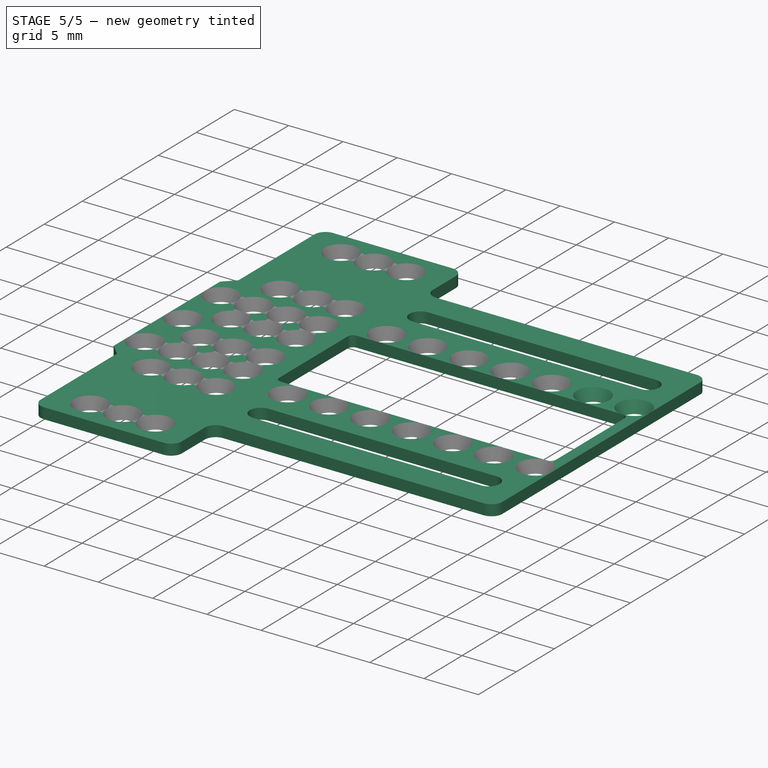
[diagram: stage 5 of 5 — iso view after this stage's code; geometry added in this stage tinted green]
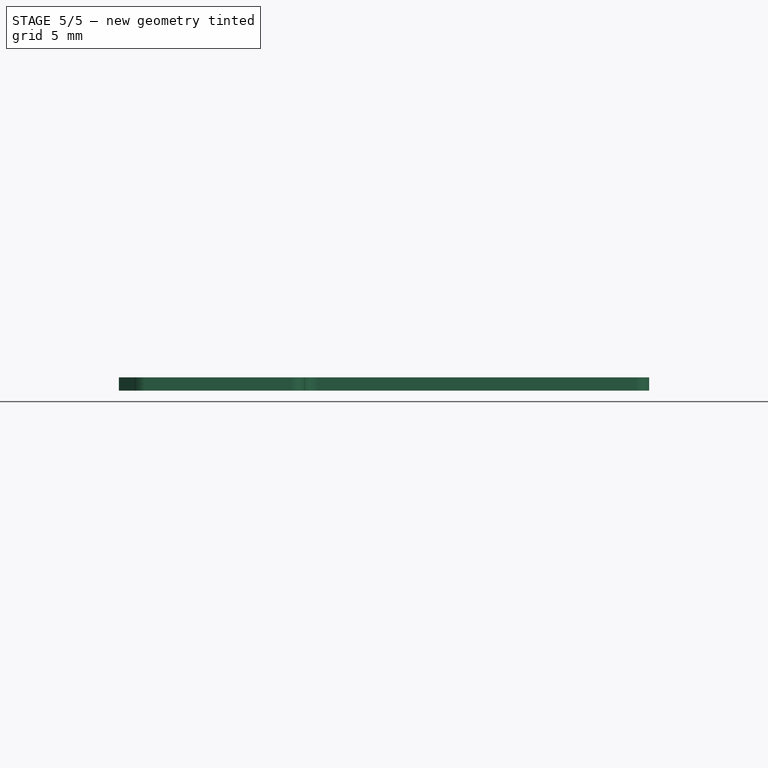
[diagram: stage 5 of 5 — front view after this stage's code; geometry added in this stage tinted green]
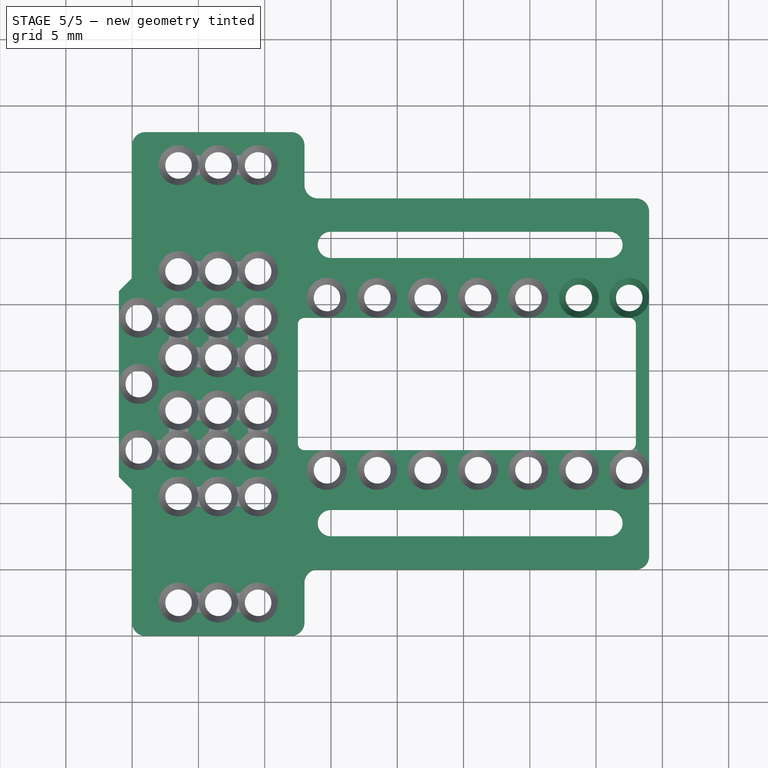
[diagram: stage 5 of 5 — top view after this stage's code; geometry added in this stage tinted green]
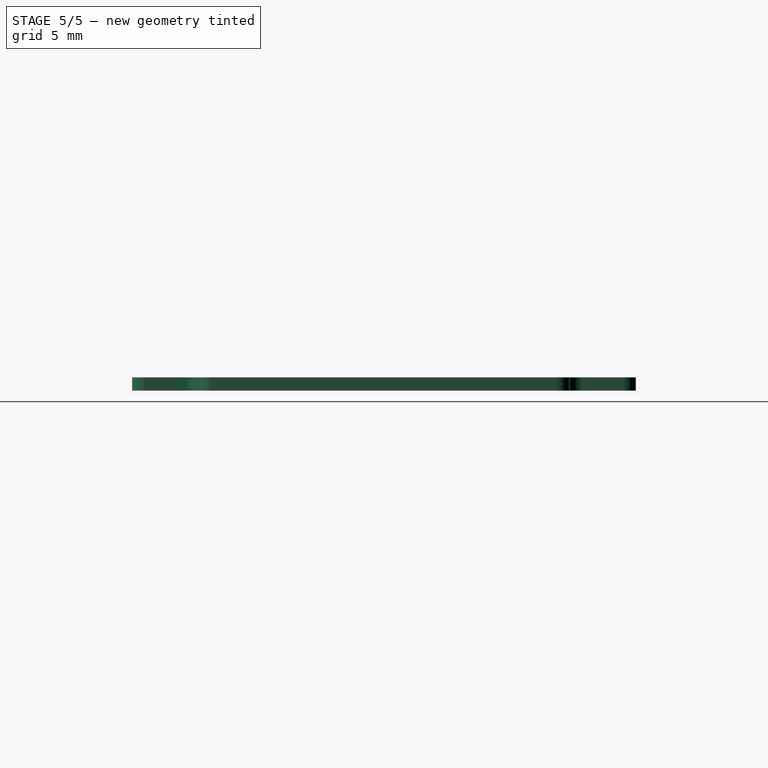
[diagram: stage 5 of 5 — right view after this stage's code; geometry added in this stage tinted green]
FEATURE [Sketcher::SketchObject] Sketch058
  sketch-geometry (4):
    g0: ArcOfCircle CenterX=36 CenterY=8 CenterZ=0 NormalX=0 NormalY=0 NormalZ=1 Radius=1 StartAngle=4.71239 EndAngle=7.85398
    g1: ArcOfCircle CenterX=15 CenterY=8 CenterZ=0 NormalX=0 NormalY=0 NormalZ=1 Radius=1 StartAngle=1.5708 EndAngle=4.71239
    g2: LineSegment StartX=15 StartY=7 StartZ=0 EndX=36 EndY=7 EndZ=0
    g3: LineSegment StartX=15 StartY=9 StartZ=0 EndX=36 EndY=9 EndZ=0
  constraints (8):
    c: PointOnObject(g2,g1)
    c: Horizontal(g2)
    c: PointOnObject(g3,g1)
    c: Horizontal(g3)
    c: Coincident(g0,g2)
    c: Coincident(g0,g3)
    c: Coincident(g1,g2)
    c: Coincident(g1,g3)
FEATURE [Sketcher::SketchObject] Sketch059
  Placement = pos=(0,22,0) rot=(0,0,1;0rad)
  sketch-geometry (4):
    g0: ArcOfCircle CenterX=36 CenterY=8 CenterZ=0 NormalX=0 NormalY=0 NormalZ=1 Radius=1 StartAngle=4.71239 EndAngle=7.85398
    g1: ArcOfCircle CenterX=15 CenterY=8 CenterZ=0 NormalX=0 NormalY=0 NormalZ=1 Radius=1 StartAngle=1.5708 EndAngle=4.71239
    g2: LineSegment StartX=15 StartY=7 StartZ=0 EndX=36 EndY=7 EndZ=0
    g3: LineSegment StartX=15 StartY=9 StartZ=0 EndX=36 EndY=9 EndZ=0
  constraints (8):
    c: PointOnObject(g2,g1)
    c: Horizontal(g2)
    c: PointOnObject(g3,g1)
    c: Horizontal(g3)
    c: Coincident(g0,g2)
    c: Coincident(g0,g3)
    c: Coincident(g1,g2)
    c: Coincident(g1,g3)
FEATURE [Part::Extrusion] Extrude
  Base = -> Sketch058
  Dir = (0,0,1)
  Placement = pos=(0,0.5,0) rot=(0,0,1;0rad)
  Solid = true
FEATURE [Part::Extrusion] Extrude002
  Base = -> Sketch059
  Dir = (0,0,1)
  Placement = pos=(0,-0.5,0) rot=(0,0,1;0rad)
  Solid = true
FEATURE [Sketcher::SketchObject] Sketch061
  Placement = pos=(0,0,1) rot=(0,0,1;0rad)
  sketch-geometry (1):
    g0: Circle CenterX=2 CenterY=2 CenterZ=0 NormalX=0 NormalY=0 NormalZ=1 Radius=1.5
FEATURE [Sketcher::SketchObject] Sketch062
  sketch-geometry (1):
    g0: Circle CenterX=2 CenterY=2 CenterZ=0 NormalX=0 NormalY=0 NormalZ=1 Radius=1
FEATURE [Part::Loft] Loft027  label="Loft067"
  Closed = false
  Placement = pos=(39.5,23.5,0) rot=(0,0,1;1.5708rad)
  Ruled = false
  Sections = -> [Sketch062,Sketch061]
  Solid = true
FEATURE [Sketcher::SketchObject] Sketch063
  Placement = pos=(0,0,1) rot=(0,0,1;0rad)
  sketch-geometry (1):
    g0: Circle CenterX=2 CenterY=2 CenterZ=0 NormalX=0 NormalY=0 NormalZ=1 Radius=1.5
FEATURE [Sketcher::SketchObject] Sketch064
  sketch-geometry (1):
    g0: Circle CenterX=2 CenterY=2 CenterZ=0 NormalX=0 NormalY=0 NormalZ=1 Radius=1
FEATURE [Part::Loft] Loft028  label="Loft068"
  Closed = false
  Placement = pos=(35.7,23.5,0) rot=(0,0,1;1.5708rad)
  Ruled = false
  Sections = -> [Sketch064,Sketch063]
  Solid = true
FEATURE [Sketcher::SketchObject] Sketch090
  sketch-geometry (20):
    g0: ArcOfCircle CenterX=1 CenterY=1 CenterZ=0 NormalX=0 NormalY=0 NormalZ=1 Radius=1 StartAngle=3.14159 EndAngle=4.71239
    g1: LineSegment StartX=1 StartY=0 StartZ=0 EndX=12 EndY=0 EndZ=0
    g2: ArcOfCircle CenterX=12 CenterY=1 CenterZ=0 NormalX=0 NormalY=0 NormalZ=1 Radius=1 StartAngle=4.71239 EndAngle=6.28319
    g3: LineSegment StartX=13 StartY=1 StartZ=0 EndX=13 EndY=4 EndZ=0
    g4: ArcOfCircle CenterX=14 CenterY=4 CenterZ=0 NormalX=0 NormalY=0 NormalZ=1 Radius=1 StartAngle=1.5708 EndAngle=3.14159
    g5: LineSegment StartX=14 StartY=5 StartZ=0 EndX=38 EndY=5 EndZ=0
    g6: ArcOfCircle CenterX=38 CenterY=6 CenterZ=0 NormalX=0 NormalY=0 NormalZ=1 Radius=1 StartAngle=4.71239 EndAngle=6.28319
    g7: LineSegment StartX=39 StartY=6 StartZ=0 EndX=39 EndY=32 EndZ=0
    g8: ArcOfCircle CenterX=38 CenterY=32 CenterZ=0 NormalX=0 NormalY=0 NormalZ=1 Radius=1 StartAngle=0 EndAngle=1.5708
    g9: LineSegment StartX=38 StartY=33 StartZ=0 EndX=14 EndY=33 EndZ=0
    g10: ArcOfCircle CenterX=14 CenterY=34 CenterZ=0 NormalX=0 NormalY=0 NormalZ=1 Radius=1 StartAngle=3.14159 EndAngle=4.71239
    g11: LineSegment StartX=13 StartY=34 StartZ=0 EndX=13 EndY=37 EndZ=0
    g12: ArcOfCircle CenterX=12 CenterY=37 CenterZ=0 NormalX=0 NormalY=0 NormalZ=1 Radius=1 StartAngle=0 EndAngle=1.5708
    g13: LineSegment StartX=12 StartY=38 StartZ=0 EndX=1 EndY=38 EndZ=0
    g14: ArcOfCircle CenterX=1 CenterY=37 CenterZ=0 NormalX=0 NormalY=0 NormalZ=1 Radius=1 StartAngle=1.5708 EndAngle=3.14159
    g15: LineSegment StartX=0 StartY=37 StartZ=0 EndX=0 EndY=27 EndZ=0
    g16: LineSegment StartX=0 StartY=27 StartZ=0 EndX=-1 EndY=26 EndZ=0
    g17: LineSegment StartX=-1 StartY=26 StartZ=0 EndX=-1 EndY=12 EndZ=0
    g18: LineSegment StartX=-1 StartY=12 StartZ=0 EndX=0 EndY=11 EndZ=0
    g19: LineSegment StartX=0 StartY=11 StartZ=0 EndX=0 EndY=1 EndZ=0
  constraints (36):
    c: PointOnObject(g0,g-2)
    c: PointOnObject(g0,g-1)
    c: Coincident(g1,g0)
    c: Horizontal(g1)
    c: Coincident(g2,g1)
    c: Coincident(g3,g2)
    c: Vertical(g3)
    c: PointOnObject(g4,g3)
    c: Coincident(g5,g4)
    c: Horizontal(g5)
    c: Coincident(g6,g5)
    c: Coincident(g7,g6)
    c: Vertical(g7)
    c: Coincident(g9,g8)
    c: Horizontal(g9)
    c: Tangent(g9,g8)
    c: Coincident(g11,g10)
    c: Vertical(g11)
    c: Coincident(g12,g11)
    c: Coincident(g13,g12)
    c: Horizontal(g13)
    c: Tangent(g13,g12)
    c: PointOnObject(g14,g-2)
    c: Coincident(g15,g14)
    c: PointOnObject(g15,g-2)
    c: Tangent(g15,g14)
    c: Coincident(g16,g15)
    c: Coincident(g17,g16)
    c: Coincident(g18,g17)
    c: PointOnObject(g18,g-2)
    c: Coincident(g19,g18)
    c: Coincident(g19,g0)
    c: Coincident(g3,g4)
    c: Coincident(g8,g7)
    c: Coincident(g10,g9)
    c: Coincident(g14,g13)
FEATURE [Part::Extrusion] Extrude003
  Base = -> Sketch090
  Dir = (0,0,1)
  Solid = true
FEATURE [Part::MultiFuse] Fusion001
  Shapes = -> [Loft027,Loft028,Loft029,Loft030,Loft031,Loft032,Loft034]
FEATURE [Sketcher::SketchObject] Sketch
  sketch-geometry (8):
    g0: LineSegment StartX=13 StartY=24 StartZ=0 EndX=37.5 EndY=24 EndZ=0
    g1: ArcOfCircle CenterX=37.5 CenterY=23.5 CenterZ=0 NormalX=0 NormalY=0 NormalZ=1 Radius=0.5 StartAngle=0 EndAngle=1.5708
    g2: ArcOfCircle CenterX=13 CenterY=23.5 CenterZ=0 NormalX=0 NormalY=0 NormalZ=1 Radius=0.5 StartAngle=1.5708 EndAngle=3.14159
    g3: LineSegment StartX=12.5 StartY=23.5 StartZ=0 EndX=12.5 EndY=14.5 EndZ=0
    g4: ArcOfCircle CenterX=13 CenterY=14.5 CenterZ=0 NormalX=0 NormalY=0 NormalZ=1 Radius=0.5 StartAngle=3.14159 EndAngle=4.71239
    g5: LineSegment StartX=13 StartY=14 StartZ=0 EndX=37.5 EndY=14 EndZ=0
    g6: ArcOfCircle CenterX=37.5 CenterY=14.5 CenterZ=0 NormalX=0 NormalY=0 NormalZ=1 Radius=0.5 StartAngle=4.71239 EndAngle=6.28319
    g7: LineSegment StartX=38 StartY=14.5 StartZ=0 EndX=38 EndY=23.5 EndZ=0
  constraints (12):
    c: Horizontal(g0)
    c: Coincident(g1,g0)
    c: Coincident(g3,g2)
    c: Vertical(g3)
    c: Coincident(g4,g3)
    c: Coincident(g5,g4)
    c: Horizontal(g5)
    c: Coincident(g6,g5)
    c: Coincident(g7,g6)
    c: Coincident(g7,g1)
    c: Vertical(g7)
    c: Coincident(g0,g2)
FEATURE [Part::Extrusion] Extrude004
  Base = -> Sketch
  Dir = (0,0,1)
  Solid = true
FEATURE [Part::MultiFuse] Fusion003
  Shapes = -> [Extrude004,Extrude,Extrude002]
FEATURE [Part::Cut] Cut
  Base = -> Extrude003
  Tool = -> Fusion003
FEATURE [Part::MultiFuse] Fusion006
  Shapes = -> [Fusion002,Fusion005,Fusion001]
FEATURE [Part::Cut] Cut001  label="SC8000-B"
  Base = -> Cut
  Tool = -> Fusion006
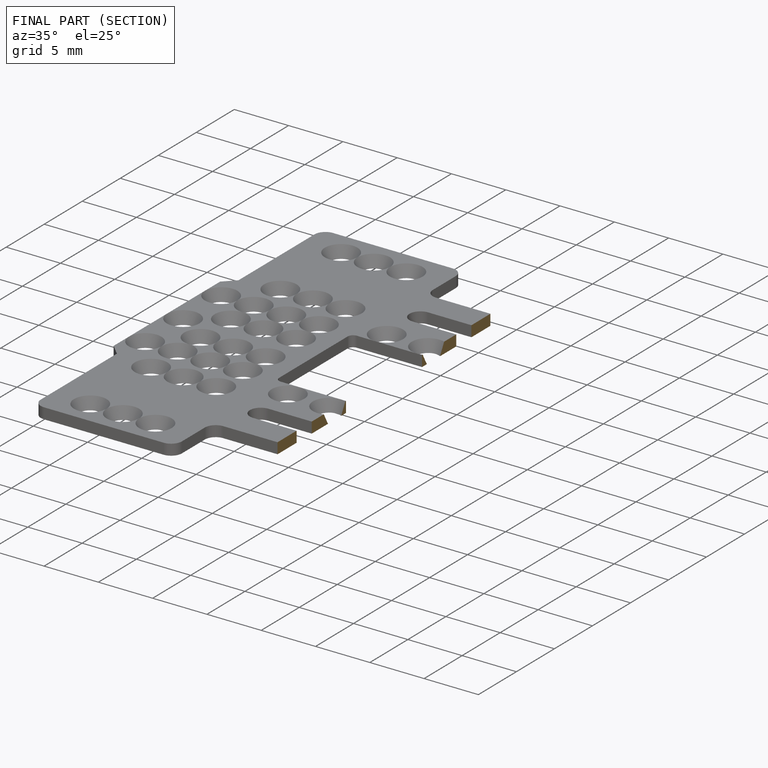
[diagram: finished part — half-section view (interior)]
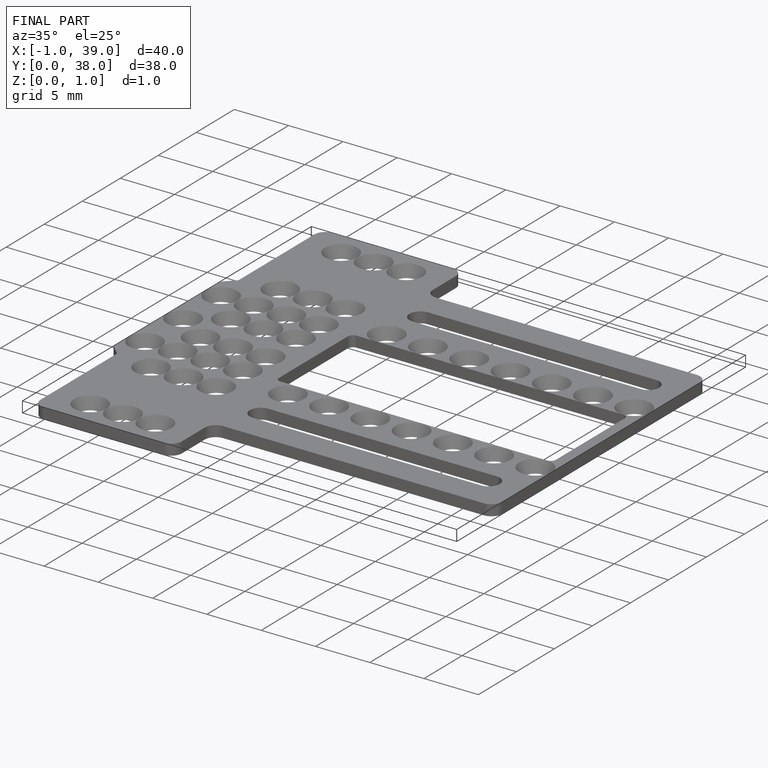
[diagram: finished part — iso view with bounding-box wireframe]
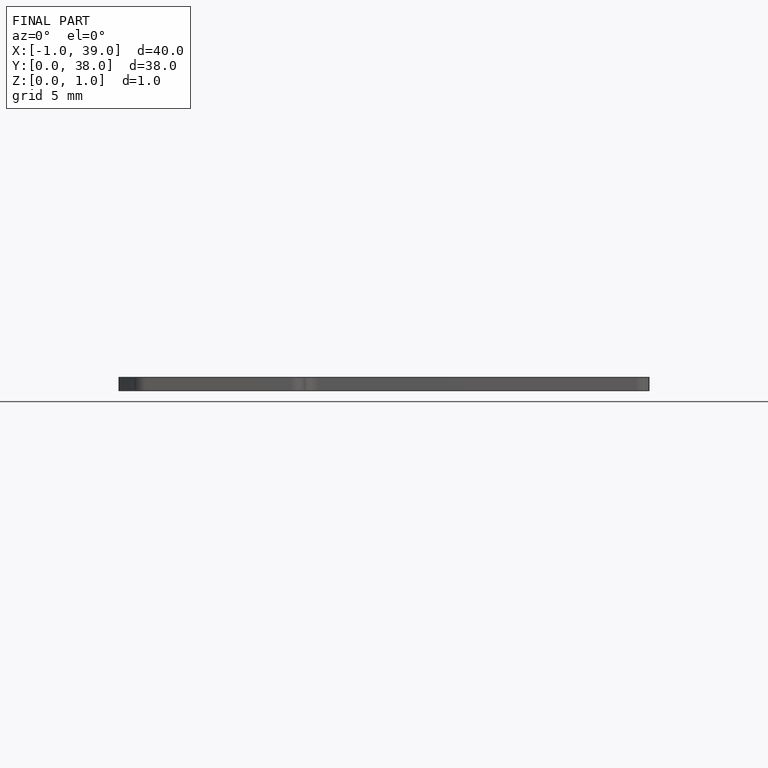
[diagram: finished part — front view with bounding-box wireframe]
